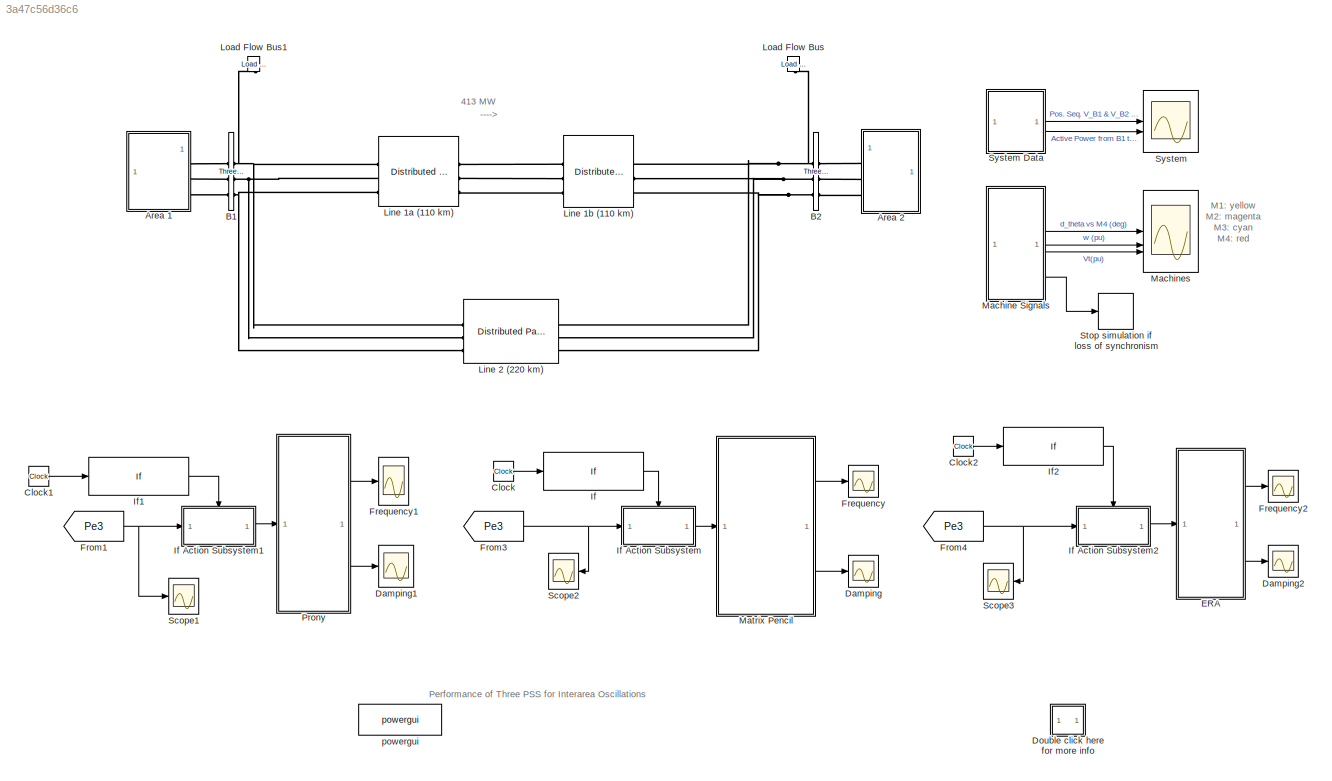
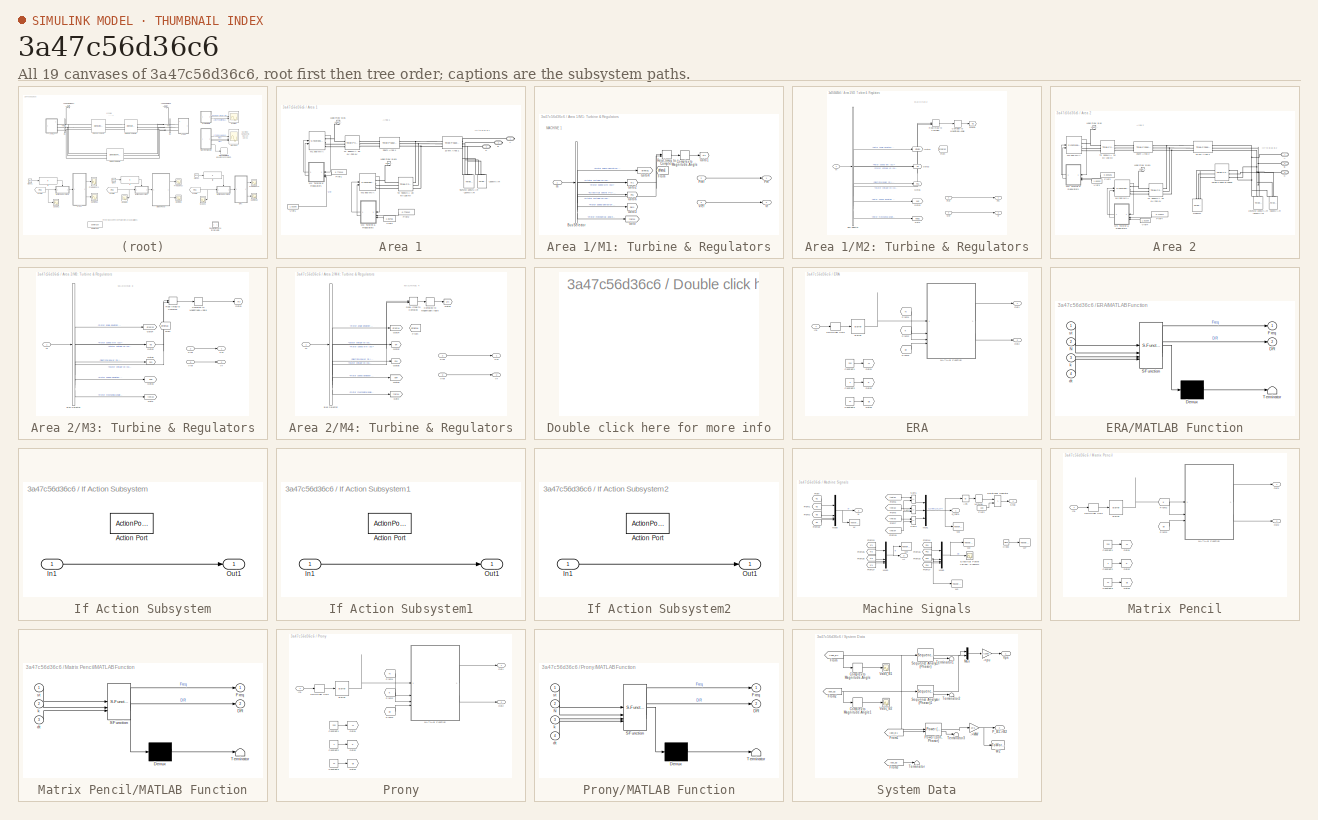
[diagram: thumbnail index - all 19 canvases of the model, root first then tree order]
MODEL slx_3a47c56d36c6
KIND model
CONFIG AbsTol = auto
CONFIG EnableMultiTasking = on
CONFIG FixedStep = auto
CONFIG InitFcn = N=200;\nTs=1/60;
CONFIG MaxStep = 1/60
CONFIG MinStep = auto
CONFIG RelTol = 1e-4
CONFIG SampleTimeConstraint = Unconstrained
CONFIG SolverName = ode23tb
CONFIG StartTime = 0.0
CONFIG StopTime = 20
BLOCK [SubSystem] Area 1
BLOCK [PMIOPort] Area 1/ A
  Side = Right
BLOCK [PMIOPort] Area 1/ B
  Port = 2
  Side = Right
BLOCK [PMIOPort] Area 1/ C
  Port = 3
  Side = Right
BLOCK [Reference] Area 1/-200MVAR  REF=spsThreePhaseParallelRLCLoadLib/Three-Phase
Parallel RLC Load
  AttributesFormatString = \n
  LibrarySourceBlock = sps_lib/Passives/Three-Phase\nParallel RLC Load
  NameLocation = right
  SourceBlock = spsThreePhaseParallelRLCLoadLib/Three-Phase\nParallel RLC Load
  SourceType = Three-Phase Parallel RLC Load
BLOCK [Reference] Area 1/10 km Area 1  REF=spsThreePhasePISectionLineLib/Three-Phase
PI Section Line
  AttributesFormatString = \n
  LibrarySourceBlock = sps_lib/Power Grid Elements/Three-Phase\nPI Section Line
  SourceBlock = spsThreePhasePISectionLineLib/Three-Phase\nPI Section Line
  SourceType = Three-Phase PI Section Line
BLOCK [Reference] Area 1/25km Area 1  REF=spsThreePhasePISectionLineLib/Three-Phase
PI Section Line
  AttributesFormatString = \n
  LibrarySourceBlock = sps_lib/Power Grid Elements/Three-Phase\nPI Section Line
  SourceBlock = spsThreePhasePISectionLineLib/Three-Phase\nPI Section Line
  SourceType = Three-Phase PI Section Line
BLOCK [Reference] Area 1/967MW 100MVAR -187MVAR  REF=spsThreePhaseParallelRLCLoadLib/Three-Phase
Parallel RLC Load
  AttributesFormatString = \n
  LibrarySourceBlock = sps_lib/Passives/Three-Phase\nParallel RLC Load
  NameLocation = left
  SourceBlock = spsThreePhaseParallelRLCLoadLib/Three-Phase\nParallel RLC Load
  SourceType = Three-Phase Parallel RLC Load
BLOCK [Reference] Area 1/Load Flow Bus  REF=spsLoadFlowBusLib/Load Flow Bus
  AttributesFormatString = %<ID>\n%<Vbase>V\n%<VLF>pu\n%<angleLF>deg.
  LibrarySourceBlock = sps_lib/Utilities/Load Flow Bus
  NameLocation = right
  SourceBlock = spsLoadFlowBusLib/Load Flow Bus
  SourceType = Load Flow Bus
BLOCK [Reference] Area 1/Load Flow Bus1  REF=spsLoadFlowBusLib/Load Flow Bus
  AttributesFormatString = %<ID>\n%<Vbase>V\n%<VLF>pu\n%<angleLF>deg.
  LibrarySourceBlock = sps_lib/Utilities/Load Flow Bus
  NameLocation = right
  SourceBlock = spsLoadFlowBusLib/Load Flow Bus
  SourceType = Load Flow Bus
BLOCK [Reference] Area 1/M1 900 MVA  REF=spsSynchronousMachinepuStandardLib/Synchronous Machine
pu Standard
  AttributesFormatString = \n\n
  LibrarySourceBlock = sps_lib/Electrical Machines/Synchronous Machine\npu Standard
  SourceBlock = spsSynchronousMachinepuStandardLib/Synchronous Machine\npu Standard
  SourceType = Synchronous Machine
BLOCK [SubSystem] Area 1/M1: Turbine & Regulators
BLOCK [BusSelector] Area 1/M1: Turbine & Regulators/Bus Selector
  OutputSignals = dq0 components.Stator voltage  vd (pu),dq0 components.Stator voltage  vq (pu),Mechanical.Rotor angle deviation  d_theta (rad),Mechanical.Rotor speed  wm  (pu),Mechanical.Electrical power  Pe (pu),Mechanical.Rotor speed deviation  dw (pu),Mechanical.Rotor mechanical angle  theta (deg)  <repeated x4 — deduplicated; at blocks: Bus Selector>
BLOCK [ComplexToMagnitudeAngle] Area 1/M1: Turbine & Regulators/Complex to Magnitude-Angle
  Output = Magnitude
BLOCK [From] Area 1/M1: Turbine & Regulators/From
  GotoTag = dtheta1
  TagVisibility = global
BLOCK [Goto] Area 1/M1: Turbine & Regulators/Goto
  GotoTag = theta1
  TagVisibility = global
BLOCK [Goto] Area 1/M1: Turbine & Regulators/Goto1
  GotoTag = Vt1
  TagVisibility = global
BLOCK [Goto] Area 1/M1: Turbine & Regulators/Goto2
  GotoTag = w1
  TagVisibility = global
BLOCK [Goto] Area 1/M1: Turbine & Regulators/Goto3
  GotoTag = dw1
  TagVisibility = global
BLOCK [Goto] Area 1/M1: Turbine & Regulators/Goto4
  GotoTag = dtheta1
  TagVisibility = global
BLOCK [Goto] Area 1/M1: Turbine & Regulators/Goto6
  GotoTag = Pe1
  TagVisibility = global
BLOCK [Outport] Area 1/M1: Turbine & Regulators/Pm
  InitialOutput = 0
BLOCK [Inport] Area 1/M1: Turbine & Regulators/Pref
  Port = 2
BLOCK [RealImagToComplex] Area 1/M1: Turbine & Regulators/Real-Imag to Complex
BLOCK [Outport] Area 1/M1: Turbine & Regulators/Vf
  InitialOutput = 0
  Port = 2
BLOCK [Inport] Area 1/M1: Turbine & Regulators/Vref
  Port = 3
BLOCK [Inport] Area 1/M1: Turbine & Regulators/m
BLOCK [Reference] Area 1/M2 900 MVA  REF=spsSynchronousMachinepuStandardLib/Synchronous Machine
pu Standard
  AttributesFormatString = \n\n
  LibrarySourceBlock = sps_lib/Electrical Machines/Synchronous Machine\npu Standard
  SourceBlock = spsSynchronousMachinepuStandardLib/Synchronous Machine\npu Standard
  SourceType = Synchronous Machine
BLOCK [SubSystem] Area 1/M2: Turbine & Regulators
BLOCK [BusSelector] Area 1/M2: Turbine & Regulators/Bus Selector
BLOCK [ComplexToMagnitudeAngle] Area 1/M2: Turbine & Regulators/Complex to Magnitude-Angle
  Output = Magnitude
BLOCK [From] Area 1/M2: Turbine & Regulators/From
  GotoTag = dtheta2
  TagVisibility = global
BLOCK [Goto] Area 1/M2: Turbine & Regulators/Goto
  GotoTag = theta2
  TagVisibility = global
BLOCK [Goto] Area 1/M2: Turbine & Regulators/Goto1
  GotoTag = Vt2
  TagVisibility = global
BLOCK [Goto] Area 1/M2: Turbine & Regulators/Goto2
  GotoTag = w2
  TagVisibility = global
BLOCK [Goto] Area 1/M2: Turbine & Regulators/Goto3
  GotoTag = dw2
  TagVisibility = global
BLOCK [Goto] Area 1/M2: Turbine & Regulators/Goto4
  GotoTag = dtheta2
  TagVisibility = global
BLOCK [Goto] Area 1/M2: Turbine & Regulators/Goto6
  GotoTag = Pe2
  TagVisibility = global
BLOCK [Outport] Area 1/M2: Turbine & Regulators/Pm
  InitialOutput = 0
BLOCK [Inport] Area 1/M2: Turbine & Regulators/Pref
  Port = 2
BLOCK [RealImagToComplex] Area 1/M2: Turbine & Regulators/Real-Imag to Complex
BLOCK [Outport] Area 1/M2: Turbine & Regulators/Vf
  InitialOutput = 0
  Port = 2
BLOCK [Inport] Area 1/M2: Turbine & Regulators/Vref
  Port = 3
BLOCK [Inport] Area 1/M2: Turbine & Regulators/m
BLOCK [Constant] Area 1/Pref1
  Value = 0.779316
BLOCK [Constant] Area 1/Pref2
  Value = 0.779242
BLOCK [Reference] Area 1/T1: 900MVA 20 kV-230 kV  REF=spsThreePhaseTransformerTwoWindingsLib/Three-Phase
Transformer
(Two Windings)
  AttributesFormatString = \n
  LibrarySourceBlock = sps_lib/Power Grid Elements/Three-Phase\nTransformer\n(Two Windings)
  SourceBlock = spsThreePhaseTransformerTwoWindingsLib/Three-Phase\nTransformer\n(Two Windings)
  SourceType = Three-Phase Transformer (Two Windings)
BLOCK [Reference] Area 1/T2: 900MVA 20 kV//230 kV  REF=spsThreePhaseTransformerTwoWindingsLib/Three-Phase
Transformer
(Two Windings)
  AttributesFormatString = \n
  LibrarySourceBlock = sps_lib/Power Grid Elements/Three-Phase\nTransformer\n(Two Windings)
  SourceBlock = spsThreePhaseTransformerTwoWindingsLib/Three-Phase\nTransformer\n(Two Windings)
  SourceType = Three-Phase Transformer (Two Windings)
BLOCK [Constant] Area 1/Vref1
  NameLocation = top
  Value = 1.83395
BLOCK [Constant] Area 1/Vref2
  Value = 1.86756
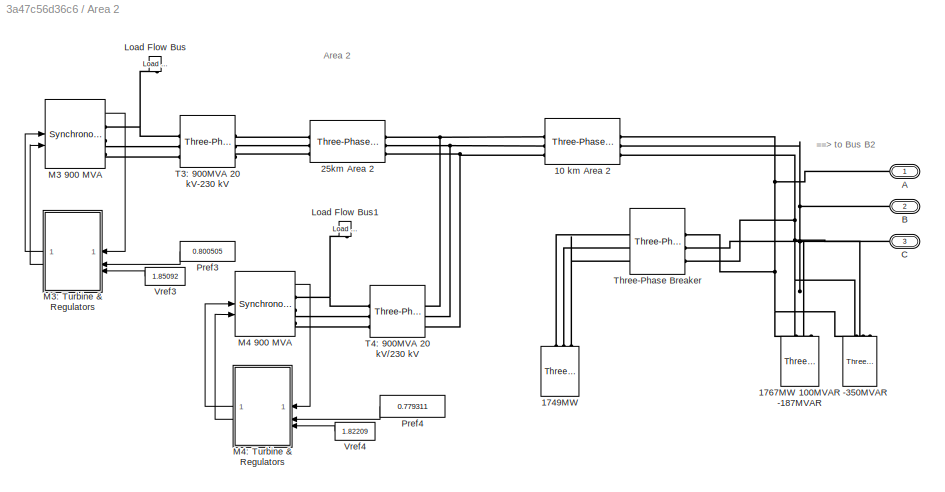
BLOCK [SubSystem] Area 2
BLOCK [Reference] Area 2/-350MVAR  REF=spsThreePhaseParallelRLCLoadLib/Three-Phase
Parallel RLC Load
  AttributesFormatString = \n
  LibrarySourceBlock = sps_lib/Passives/Three-Phase\nParallel RLC Load
  NameLocation = right
  SourceBlock = spsThreePhaseParallelRLCLoadLib/Three-Phase\nParallel RLC Load
  SourceType = Three-Phase Parallel RLC Load
BLOCK [Reference] Area 2/10 km Area 2  REF=spsThreePhasePISectionLineLib/Three-Phase
PI Section Line
  AttributesFormatString = \n
  LibrarySourceBlock = sps_lib/Power Grid Elements/Three-Phase\nPI Section Line
  SourceBlock = spsThreePhasePISectionLineLib/Three-Phase\nPI Section Line
  SourceType = Three-Phase PI Section Line
BLOCK [Reference] Area 2/1749MW   REF=spsThreePhaseParallelRLCLoadLib/Three-Phase
Parallel RLC Load
  AttributesFormatString = \n
  LibrarySourceBlock = sps_lib/Passives/Three-Phase\nParallel RLC Load
  NameLocation = left
  SourceBlock = spsThreePhaseParallelRLCLoadLib/Three-Phase\nParallel RLC Load
  SourceType = Three-Phase Parallel RLC Load
BLOCK [Reference] Area 2/1767MW 100MVAR -187MVAR  REF=spsThreePhaseParallelRLCLoadLib/Three-Phase
Parallel RLC Load
  AttributesFormatString = \n
  LibrarySourceBlock = sps_lib/Passives/Three-Phase\nParallel RLC Load
  NameLocation = left
  SourceBlock = spsThreePhaseParallelRLCLoadLib/Three-Phase\nParallel RLC Load
  SourceType = Three-Phase Parallel RLC Load
BLOCK [Reference] Area 2/25km Area 2  REF=spsThreePhasePISectionLineLib/Three-Phase
PI Section Line
  AttributesFormatString = \n
  LibrarySourceBlock = sps_lib/Power Grid Elements/Three-Phase\nPI Section Line
  SourceBlock = spsThreePhasePISectionLineLib/Three-Phase\nPI Section Line
  SourceType = Three-Phase PI Section Line
BLOCK [PMIOPort] Area 2/A
  Side = Left
BLOCK [PMIOPort] Area 2/B
  Port = 2
  Side = Left
BLOCK [PMIOPort] Area 2/C
  Port = 3
  Side = Left
BLOCK [Reference] Area 2/Load Flow Bus  REF=spsLoadFlowBusLib/Load Flow Bus
  AttributesFormatString = %<ID>\n%<Vbase>V\n%<VLF>pu\n%<angleLF>deg.
  LibrarySourceBlock = sps_lib/Utilities/Load Flow Bus
  NameLocation = right
  SourceBlock = spsLoadFlowBusLib/Load Flow Bus
  SourceType = Load Flow Bus
BLOCK [Reference] Area 2/Load Flow Bus1  REF=spsLoadFlowBusLib/Load Flow Bus
  AttributesFormatString = %<ID>\n%<Vbase>V\n%<VLF>pu\n%<angleLF>deg.
  LibrarySourceBlock = sps_lib/Utilities/Load Flow Bus
  NameLocation = right
  SourceBlock = spsLoadFlowBusLib/Load Flow Bus
  SourceType = Load Flow Bus
BLOCK [Reference] Area 2/M3 900 MVA  REF=spsSynchronousMachinepuStandardLib/Synchronous Machine
pu Standard
  AttributesFormatString = \n\n
  LibrarySourceBlock = sps_lib/Electrical Machines/Synchronous Machine\npu Standard
  SourceBlock = spsSynchronousMachinepuStandardLib/Synchronous Machine\npu Standard
  SourceType = Synchronous Machine
BLOCK [SubSystem] Area 2/M3: Turbine & Regulators
BLOCK [BusSelector] Area 2/M3: Turbine & Regulators/Bus Selector
BLOCK [ComplexToMagnitudeAngle] Area 2/M3: Turbine & Regulators/Complex to Magnitude-Angle
  Output = Magnitude
BLOCK [From] Area 2/M3: Turbine & Regulators/From
  GotoTag = dtheta3
  TagVisibility = global
BLOCK [Goto] Area 2/M3: Turbine & Regulators/Goto
  GotoTag = theta3
  TagVisibility = global
BLOCK [Goto] Area 2/M3: Turbine & Regulators/Goto1
  GotoTag = Vt3
  TagVisibility = global
BLOCK [Goto] Area 2/M3: Turbine & Regulators/Goto2
  GotoTag = w3
  TagVisibility = global
BLOCK [Goto] Area 2/M3: Turbine & Regulators/Goto3
  GotoTag = dw3
  TagVisibility = global
BLOCK [Goto] Area 2/M3: Turbine & Regulators/Goto4
  GotoTag = dtheta3
  TagVisibility = global
BLOCK [Goto] Area 2/M3: Turbine & Regulators/Goto6
  GotoTag = Pe3
  TagVisibility = global
BLOCK [Outport] Area 2/M3: Turbine & Regulators/Pm
  InitialOutput = 0
BLOCK [Inport] Area 2/M3: Turbine & Regulators/Pref
  Port = 2
BLOCK [RealImagToComplex] Area 2/M3: Turbine & Regulators/Real-Imag to Complex
BLOCK [Outport] Area 2/M3: Turbine & Regulators/Vf
  InitialOutput = 0
  Port = 2
BLOCK [Inport] Area 2/M3: Turbine & Regulators/Vref
  Port = 3
BLOCK [Inport] Area 2/M3: Turbine & Regulators/m
BLOCK [Reference] Area 2/M4 900 MVA  REF=spsSynchronousMachinepuStandardLib/Synchronous Machine
pu Standard
  AttributesFormatString = \n\n
  LibrarySourceBlock = sps_lib/Electrical Machines/Synchronous Machine\npu Standard
  SourceBlock = spsSynchronousMachinepuStandardLib/Synchronous Machine\npu Standard
  SourceType = Synchronous Machine
BLOCK [SubSystem] Area 2/M4: Turbine & Regulators
BLOCK [BusSelector] Area 2/M4: Turbine & Regulators/Bus Selector
BLOCK [ComplexToMagnitudeAngle] Area 2/M4: Turbine & Regulators/Complex to Magnitude-Angle
  Output = Magnitude
BLOCK [From] Area 2/M4: Turbine & Regulators/From
  GotoTag = dtheta4
  TagVisibility = global
BLOCK [Goto] Area 2/M4: Turbine & Regulators/Goto
  GotoTag = theta4
  TagVisibility = global
BLOCK [Goto] Area 2/M4: Turbine & Regulators/Goto1
  GotoTag = Vt4
  TagVisibility = global
BLOCK [Goto] Area 2/M4: Turbine & Regulators/Goto2
  GotoTag = w4
  TagVisibility = global
BLOCK [Goto] Area 2/M4: Turbine & Regulators/Goto3
  GotoTag = dw4
  TagVisibility = global
BLOCK [Goto] Area 2/M4: Turbine & Regulators/Goto4
  GotoTag = dtheta4
  TagVisibility = global
BLOCK [Goto] Area 2/M4: Turbine & Regulators/Goto6
  GotoTag = Pe4
  TagVisibility = global
BLOCK [Outport] Area 2/M4: Turbine & Regulators/Pm
  InitialOutput = 0
BLOCK [Inport] Area 2/M4: Turbine & Regulators/Pref
  Port = 2
BLOCK [RealImagToComplex] Area 2/M4: Turbine & Regulators/Real-Imag to Complex
BLOCK [Outport] Area 2/M4: Turbine & Regulators/Vf
  InitialOutput = 0
  Port = 2
BLOCK [Inport] Area 2/M4: Turbine & Regulators/Vref
  Port = 3
BLOCK [Inport] Area 2/M4: Turbine & Regulators/m
BLOCK [Constant] Area 2/Pref3
  Value = 0.800505
BLOCK [Constant] Area 2/Pref4
  Value = 0.779311
BLOCK [Reference] Area 2/T3: 900MVA 20 kV-230 kV  REF=spsThreePhaseTransformerTwoWindingsLib/Three-Phase
Transformer
(Two Windings)
  AttributesFormatString = \n
  LibrarySourceBlock = sps_lib/Power Grid Elements/Three-Phase\nTransformer\n(Two Windings)
  SourceBlock = spsThreePhaseTransformerTwoWindingsLib/Three-Phase\nTransformer\n(Two Windings)
  SourceType = Three-Phase Transformer (Two Windings)
BLOCK [Reference] Area 2/T4: 900MVA 20 kV//230 kV  REF=spsThreePhaseTransformerTwoWindingsLib/Three-Phase
Transformer
(Two Windings)
  AttributesFormatString = \n
  LibrarySourceBlock = sps_lib/Power Grid Elements/Three-Phase\nTransformer\n(Two Windings)
  SourceBlock = spsThreePhaseTransformerTwoWindingsLib/Three-Phase\nTransformer\n(Two Windings)
  SourceType = Three-Phase Transformer (Two Windings)
BLOCK [Reference] Area 2/Three-Phase Breaker  REF=spsThreePhaseBreakerLib/Three-Phase Breaker
  LibrarySourceBlock = sps_lib/Power Grid Elements/Three-Phase Breaker
  NameLocation = top
  SourceBlock = spsThreePhaseBreakerLib/Three-Phase Breaker
  SourceType = Three-Phase Breaker
BLOCK [Constant] Area 2/Vref3
  Value = 1.85092
BLOCK [Constant] Area 2/Vref4
  Value = 1.82209
BLOCK [Reference] B1  REF=spsThreePhaseVIMeasurementLib/Three-Phase
V-I Measurement
  LibrarySourceBlock = sps_lib/Sensors and Measurements/Three-Phase\nV-I Measurement
  SourceBlock = spsThreePhaseVIMeasurementLib/Three-Phase\nV-I Measurement
  SourceType = Three-Phase VI Measurement
BLOCK [Reference] B2  REF=spsThreePhaseVIMeasurementLib/Three-Phase
V-I Measurement
  LibrarySourceBlock = sps_lib/Sensors and Measurements/Three-Phase\nV-I Measurement
  SourceBlock = spsThreePhaseVIMeasurementLib/Three-Phase\nV-I Measurement
  SourceType = Three-Phase VI Measurement
BLOCK [Clock] Clock
  Decimation = 1
BLOCK [Clock] Clock1
  Decimation = 1
BLOCK [Clock] Clock2
  Decimation = 1
BLOCK [Scope] Damping
  Floating = off
  NumInputPorts = 1
  ScopeSpecificationString = C++SS(StrPVP('Location','[824, 152, 1355, 575]'),StrPVP('Open','off'),StrPVP('ZoomMode','yonly'),MxPVP('AxesTitles',54,'struct(''axes1'',''%<SignalLabel>'')'),MxPVP('ScopeGraphics',57,'struct(''FigureColor'',''[0.156862745098039 0.156862745098039 0.156862745098039]'',''AxesColor'',''[0 0 0]'',''AxesTickColor'',''[0.686274509803922 0.686274509803922 0.686274509803922]'',''LineColors'',''[1 1 0;1 0 ...<+409ch>
BLOCK [Scope] Damping1
  Floating = off
  NumInputPorts = 1
  ScopeSpecificationString = C++SS(StrPVP('Location','[58, 196, 589, 619]'),StrPVP('Open','off'),MxPVP('AxesTitles',54,'struct(''axes1'',''%<SignalLabel>'')'),MxPVP('ScopeGraphics',57,'struct(''FigureColor'',''[0.156862745098039 0.156862745098039 0.156862745098039]'',''AxesColor'',''[0 0 0]'',''AxesTickColor'',''[0.686274509803922 0.686274509803922 0.686274509803922]'',''LineColors'',''[1 1 0;1 0 1;0 1 1;1 0 0;0 1 0;0 0 1]'',...<+385ch>
BLOCK [Scope] Damping2
  Floating = off
  NumInputPorts = 1
  ScopeSpecificationString = C++SS(StrPVP('Location','[369, 156, 900, 579]'),StrPVP('Open','off'),StrPVP('ZoomMode','yonly'),MxPVP('AxesTitles',54,'struct(''axes1'',''%<SignalLabel>'')'),MxPVP('ScopeGraphics',57,'struct(''FigureColor'',''[0.156862745098039 0.156862745098039 0.156862745098039]'',''AxesColor'',''[0 0 0]'',''AxesTickColor'',''[0.686274509803922 0.686274509803922 0.686274509803922]'',''LineColors'',''[1 1 0;1 0 1...<+409ch>
BLOCK [SubSystem] Double click here for more info
  OpenFcn = showdemo(bdroot(gcb))
BLOCK [SubSystem] ERA
BLOCK [Buffer] ERA/Buffer
  N = N
  V = N-1
BLOCK [Constant] ERA/Constant1
  SampleTime = Ts
  Value = 200
BLOCK [Constant] ERA/Constant2
  SampleTime = Ts
  Value = 2
BLOCK [Constant] ERA/Constant3
  SampleTime = Ts
  Value = Ts
BLOCK [From] ERA/From1
  GotoTag = N
BLOCK [From] ERA/From2
  GotoTag = k
BLOCK [From] ERA/From3
  GotoTag = dt
BLOCK [Goto] ERA/Goto1
  GotoTag = N
BLOCK [Goto] ERA/Goto2
  GotoTag = k
BLOCK [Goto] ERA/Goto3
  GotoTag = dt
BLOCK [Inport] ERA/In1
BLOCK [SubSystem] ERA/MATLAB Function
  ErrorFcn = Stateflow.Translate.translate
  PermitHierarchicalResolution = ExplicitOnly
  SFBlockType = MATLAB Function
  TreatAsAtomicUnit = on
BLOCK [Demux] ERA/MATLAB Function/ Demux 
  Outputs = 1
BLOCK [S-Function] ERA/MATLAB Function/ SFunction 
  EnableBusSupport = off
  FunctionName = sf_sfun
  PortCounts = [4 3]
  SFcnIsStateOwnerBlock = off
  SFunctionDeploymentMode = off
  Tag = Stateflow S-Function 3
BLOCK [Terminator] ERA/MATLAB Function/ Terminator 
BLOCK [Outport] ERA/MATLAB Function/DR
  Port = 2
BLOCK [Outport] ERA/MATLAB Function/Freq
BLOCK [Inport] ERA/MATLAB Function/N
  Port = 2
BLOCK [Inport] ERA/MATLAB Function/dt
  Port = 4
BLOCK [Inport] ERA/MATLAB Function/k
  Port = 3
BLOCK [Inport] ERA/MATLAB Function/st
BLOCK [Outport] ERA/Out1
BLOCK [Outport] ERA/Out2
  Port = 2
BLOCK [ZeroOrderHold] ERA/Zero-Order Hold
  SampleTime = Ts
BLOCK [Scope] Frequency
  Floating = off
  NumInputPorts = 1
  ScopeSpecificationString = C++SS(StrPVP('Location','[230, 337, 790, 757]'),StrPVP('Open','off'),MxPVP('AxesTitles',54,'struct(''axes1'',''%<SignalLabel>'')'),MxPVP('ScopeGraphics',57,'struct(''FigureColor'',''[0.156862745098039 0.156862745098039 0.156862745098039]'',''AxesColor'',''[0 0 0]'',''AxesTickColor'',''[0.686274509803922 0.686274509803922 0.686274509803922]'',''LineColors'',''[1 1 0;1 0 1;0 1 1;1 0 0;0 1 0;0 0 1]''...<+373ch>
BLOCK [Scope] Frequency1
  Floating = off
  NumInputPorts = 1
  ScopeSpecificationString = C++SS(StrPVP('Location','[172, 77, 679, 420]'),StrPVP('Open','off'),MxPVP('AxesTitles',54,'struct(''axes1'',''%<SignalLabel>'')'),MxPVP('ScopeGraphics',57,'struct(''FigureColor'',''[0.156862745098039 0.156862745098039 0.156862745098039]'',''AxesColor'',''[0 0 0]'',''AxesTickColor'',''[0.686274509803922 0.686274509803922 0.686274509803922]'',''LineColors'',''[1 1 0;1 0 1;0 1 1;1 0 0;0 1 0;0 0 1]'',...<+384ch>
BLOCK [Scope] Frequency2
  Floating = off
  NumInputPorts = 1
  ScopeSpecificationString = C++SS(StrPVP('Location','[802, 65, 1362, 485]'),StrPVP('Open','off'),MxPVP('AxesTitles',54,'struct(''axes1'',''%<SignalLabel>'')'),MxPVP('ScopeGraphics',57,'struct(''FigureColor'',''[0.156862745098039 0.156862745098039 0.156862745098039]'',''AxesColor'',''[0 0 0]'',''AxesTickColor'',''[0.686274509803922 0.686274509803922 0.686274509803922]'',''LineColors'',''[1 1 0;1 0 1;0 1 1;1 0 0;0 1 0;0 0 1]''...<+385ch>
BLOCK [From] From1
  CloseFcn = tagdialog Close
  GotoTag = Pe3
  TagVisibility = global
BLOCK [From] From3
  CloseFcn = tagdialog Close
  GotoTag = Pe3
  TagVisibility = global
BLOCK [From] From4
  CloseFcn = tagdialog Close
  GotoTag = Pe3
  TagVisibility = global
BLOCK [If] If
  IfExpression = u1 > 2
  ShowElse = off
BLOCK [SubSystem] If Action Subsystem
  TreatAsAtomicUnit = on
BLOCK [ActionPort] If Action Subsystem/Action Port
BLOCK [Inport] If Action Subsystem/In1
BLOCK [Outport] If Action Subsystem/Out1
BLOCK [SubSystem] If Action Subsystem1
  TreatAsAtomicUnit = on
BLOCK [ActionPort] If Action Subsystem1/Action Port
BLOCK [Inport] If Action Subsystem1/In1
BLOCK [Outport] If Action Subsystem1/Out1
BLOCK [SubSystem] If Action Subsystem2
  TreatAsAtomicUnit = on
BLOCK [ActionPort] If Action Subsystem2/Action Port
BLOCK [Inport] If Action Subsystem2/In1
BLOCK [Outport] If Action Subsystem2/Out1
BLOCK [If] If1
  IfExpression = u1 > 2
  ShowElse = off
BLOCK [If] If2
  IfExpression = u1 > 2
  ShowElse = off
BLOCK [Reference] Line 1a (110 km)  REF=spsDistributedParametersLineLib/Distributed Parameters Line
  AttributesFormatString = \n
  LibrarySourceBlock = sps_lib/Power Grid Elements/Distributed Parameters Line
  SourceBlock = spsDistributedParametersLineLib/Distributed Parameters Line
  SourceType = Distributed Parameters Line
BLOCK [Reference] Line 1b (110 km)  REF=spsDistributedParametersLineLib/Distributed Parameters Line
  AttributesFormatString = \n
  LibrarySourceBlock = sps_lib/Power Grid Elements/Distributed Parameters Line
  SourceBlock = spsDistributedParametersLineLib/Distributed Parameters Line
  SourceType = Distributed Parameters Line
BLOCK [Reference] Line 2 (220 km)  REF=spsDistributedParametersLineLib/Distributed Parameters Line
  AttributesFormatString = \n
  LibrarySourceBlock = sps_lib/Power Grid Elements/Distributed Parameters Line
  SourceBlock = spsDistributedParametersLineLib/Distributed Parameters Line
  SourceType = Distributed Parameters Line
BLOCK [Reference] Load Flow Bus  REF=spsLoadFlowBusLib/Load Flow Bus
  AttributesFormatString = %<ID>\n%<Vbase>V\n%<VLF>pu\n%<angleLF>deg.
  LibrarySourceBlock = sps_lib/Utilities/Load Flow Bus
  NameLocation = right
  SourceBlock = spsLoadFlowBusLib/Load Flow Bus
  SourceType = Load Flow Bus
BLOCK [Reference] Load Flow Bus1  REF=spsLoadFlowBusLib/Load Flow Bus
  AttributesFormatString = %<ID>\n%<Vbase>V\n%<VLF>pu\n%<angleLF>deg.
  LibrarySourceBlock = sps_lib/Utilities/Load Flow Bus
  NameLocation = right
  SourceBlock = spsLoadFlowBusLib/Load Flow Bus
  SourceType = Load Flow Bus
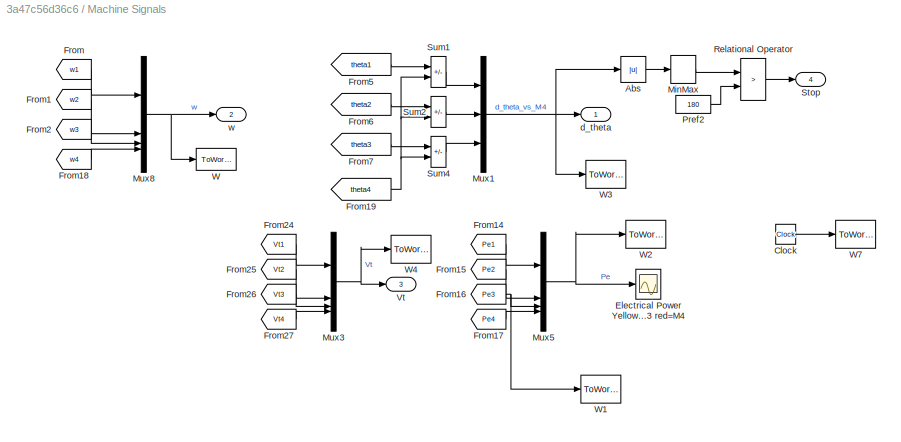
BLOCK [SubSystem] Machine Signals
BLOCK [Abs] Machine Signals/Abs
BLOCK [Clock] Machine Signals/Clock
BLOCK [Scope] Machine Signals/Electrical Power Yellow=M1 mag=M2 cyan=M3 red=M4 
  Floating = off
  NumInputPorts = 1
  ScopeSpecificationString = C++SS(StrPVP('Location','[644, 190, 1350, 563]'),StrPVP('Open','off'),MxPVP('AxesTitles',54,'struct(''axes1'',''%<SignalLabel>'')'),MxPVP('ScopeGraphics',57,'struct(''FigureColor'',''[0.501960784313725 0.501960784313725 0.501960784313725]'',''AxesColor'',''[0 0 0]'',''AxesTickColor'',''[1 1 1]'',''LineColors'',''[1 1 0;1 0 1;0 1 1;1 0 0;0 1 0;0 0 1]'',''LineStyles'',''-|-|-|-|-|-'',''LineWidths'',...<+288ch>
BLOCK [From] Machine Signals/From
  CloseFcn = tagdialog Close
  GotoTag = w1
  TagVisibility = global
BLOCK [From] Machine Signals/From1
  CloseFcn = tagdialog Close
  GotoTag = w2
  TagVisibility = global
BLOCK [From] Machine Signals/From14
  CloseFcn = tagdialog Close
  GotoTag = Pe1
  TagVisibility = global
BLOCK [From] Machine Signals/From15
  CloseFcn = tagdialog Close
  GotoTag = Pe2
  TagVisibility = global
BLOCK [From] Machine Signals/From16
  CloseFcn = tagdialog Close
  GotoTag = Pe3
  TagVisibility = global
BLOCK [From] Machine Signals/From17
  CloseFcn = tagdialog Close
  GotoTag = Pe4
  TagVisibility = global
BLOCK [From] Machine Signals/From18
  CloseFcn = tagdialog Close
  GotoTag = w4
  TagVisibility = global
BLOCK [From] Machine Signals/From19
  CloseFcn = tagdialog Close
  GotoTag = theta4
  TagVisibility = global
BLOCK [From] Machine Signals/From2
  CloseFcn = tagdialog Close
  GotoTag = w3
  TagVisibility = global
BLOCK [From] Machine Signals/From24
  CloseFcn = tagdialog Close
  GotoTag = Vt1
  TagVisibility = global
BLOCK [From] Machine Signals/From25
  CloseFcn = tagdialog Close
  GotoTag = Vt2
  TagVisibility = global
BLOCK [From] Machine Signals/From26
  CloseFcn = tagdialog Close
  GotoTag = Vt3
  TagVisibility = global
BLOCK [From] Machine Signals/From27
  CloseFcn = tagdialog Close
  GotoTag = Vt4
  TagVisibility = global
BLOCK [From] Machine Signals/From5
  CloseFcn = tagdialog Close
  GotoTag = theta1
  TagVisibility = global
BLOCK [From] Machine Signals/From6
  CloseFcn = tagdialog Close
  GotoTag = theta2
  TagVisibility = global
BLOCK [From] Machine Signals/From7
  CloseFcn = tagdialog Close
  GotoTag = theta3
  TagVisibility = global
BLOCK [MinMax] Machine Signals/MinMax
  Function = max
  InputSameDT = on
  SaturateOnIntegerOverflow = on
BLOCK [Mux] Machine Signals/Mux1
  DisplayOption = bar
  Inputs = 3
BLOCK [Mux] Machine Signals/Mux3
  DisplayOption = bar
BLOCK [Mux] Machine Signals/Mux5
  DisplayOption = bar
BLOCK [Mux] Machine Signals/Mux8
  DisplayOption = bar
BLOCK [Constant] Machine Signals/Pref2
  NameLocation = top
  Value = 180
BLOCK [RelationalOperator] Machine Signals/Relational Operator
  Operator = >
BLOCK [Outport] Machine Signals/Stop
  Port = 4
BLOCK [Sum] Machine Signals/Sum1
  IconShape = rectangular
  InputSameDT = on
  Inputs = +-
  OutDataTypeStr = Inherit: Same as first input
  SaturateOnIntegerOverflow = on
BLOCK [Sum] Machine Signals/Sum2
  IconShape = rectangular
  InputSameDT = on
  Inputs = +-
  OutDataTypeStr = Inherit: Same as first input
  SaturateOnIntegerOverflow = on
BLOCK [Sum] Machine Signals/Sum4
  IconShape = rectangular
  InputSameDT = on
  Inputs = +-
  OutDataTypeStr = Inherit: Same as first input
  SaturateOnIntegerOverflow = on
BLOCK [Outport] Machine Signals/Vt
  Port = 3
BLOCK [ToWorkspace] Machine Signals/W
  MaxDataPoints = inf
  SampleTime = 1/60
  VariableName = w
BLOCK [ToWorkspace] Machine Signals/W1
  MaxDataPoints = inf
  SampleTime = 1/60
  VariableName = Pe3_1
BLOCK [ToWorkspace] Machine Signals/W2
  MaxDataPoints = inf
  SampleTime = 1/60
  VariableName = Pe
BLOCK [ToWorkspace] Machine Signals/W3
  MaxDataPoints = inf
  SampleTime = 1/60
  VariableName = DTH
BLOCK [ToWorkspace] Machine Signals/W4
  MaxDataPoints = inf
  SampleTime = 1/60
  VariableName = Vt
BLOCK [ToWorkspace] Machine Signals/W7
  MaxDataPoints = inf
  SampleTime = 1/60
  VariableName = t
BLOCK [Outport] Machine Signals/d_theta
BLOCK [Outport] Machine Signals/w
  Port = 2
BLOCK [Scope] Machines
  Floating = off
  NameLocation = top
  NumInputPorts = 3
  ScopeSpecificationString = C++SS(StrPVP('Location','[645, 86, 1269, 686]'),StrPVP('Open','off'),StrPVP('ZoomMode','xonly'),MxPVP('AxesTitles',54,'struct(''axes1'',''%<SignalLabel>'',''axes2'',''%<SignalLabel>'',''axes3'',''%<SignalLabel>'')'),MxPVP('ScopeGraphics',57,'struct(''FigureColor'',''[0.156862745098039 0.156862745098039 0.156862745098039]'',''AxesColor'',''[0 0 0]'',''AxesTickColor'',''[0.686274509803922 0.68627450...<+462ch>
BLOCK [SubSystem] Matrix Pencil
BLOCK [Buffer] Matrix Pencil/Buffer
  N = N
  V = N-1
BLOCK [Constant] Matrix Pencil/Constant1
  SampleTime = Ts
  Value = 200
BLOCK [Constant] Matrix Pencil/Constant2
  SampleTime = Ts
  Value = 2
BLOCK [Constant] Matrix Pencil/Constant3
  SampleTime = Ts
  Value = Ts
BLOCK [From] Matrix Pencil/From2
  GotoTag = k
BLOCK [From] Matrix Pencil/From3
  GotoTag = dt
BLOCK [Goto] Matrix Pencil/Goto1
  GotoTag = N
BLOCK [Goto] Matrix Pencil/Goto2
  GotoTag = k
BLOCK [Goto] Matrix Pencil/Goto3
  GotoTag = dt
BLOCK [Inport] Matrix Pencil/In1
BLOCK [SubSystem] Matrix Pencil/MATLAB Function
  ErrorFcn = Stateflow.Translate.translate
  PermitHierarchicalResolution = ExplicitOnly
  SFBlockType = MATLAB Function
  TreatAsAtomicUnit = on
BLOCK [Demux] Matrix Pencil/MATLAB Function/ Demux 
  Outputs = 1
BLOCK [S-Function] Matrix Pencil/MATLAB Function/ SFunction 
  EnableBusSupport = off
  FunctionName = sf_sfun
  PortCounts = [3 3]
  SFcnIsStateOwnerBlock = off
  SFunctionDeploymentMode = off
  Tag = Stateflow S-Function 2
BLOCK [Terminator] Matrix Pencil/MATLAB Function/ Terminator 
BLOCK [Outport] Matrix Pencil/MATLAB Function/DR
  Port = 2
BLOCK [Outport] Matrix Pencil/MATLAB Function/Freq
BLOCK [Inport] Matrix Pencil/MATLAB Function/dt
  Port = 3
BLOCK [Inport] Matrix Pencil/MATLAB Function/k
  Port = 2
BLOCK [Inport] Matrix Pencil/MATLAB Function/st
BLOCK [Outport] Matrix Pencil/Out1
BLOCK [Outport] Matrix Pencil/Out2
  Port = 2
BLOCK [ZeroOrderHold] Matrix Pencil/Zero-Order Hold
  SampleTime = Ts
BLOCK [SubSystem] Prony
BLOCK [Buffer] Prony/Buffer
  N = N
  V = N-1
BLOCK [Constant] Prony/Constant1
  SampleTime = Ts
  Value = 200
BLOCK [Constant] Prony/Constant2
  SampleTime = Ts
  Value = 2
BLOCK [Constant] Prony/Constant3
  SampleTime = Ts
  Value = Ts
BLOCK [From] Prony/From1
  GotoTag = N
BLOCK [From] Prony/From2
  GotoTag = k
BLOCK [From] Prony/From3
  GotoTag = dt
BLOCK [Goto] Prony/Goto1
  GotoTag = N
BLOCK [Goto] Prony/Goto2
  GotoTag = k
BLOCK [Goto] Prony/Goto3
  GotoTag = dt
BLOCK [Inport] Prony/In1
BLOCK [SubSystem] Prony/MATLAB Function
  ErrorFcn = Stateflow.Translate.translate
  PermitHierarchicalResolution = ExplicitOnly
  SFBlockType = MATLAB Function
  TreatAsAtomicUnit = on
BLOCK [Demux] Prony/MATLAB Function/ Demux 
  Outputs = 1
BLOCK [S-Function] Prony/MATLAB Function/ SFunction 
  EnableBusSupport = off
  FunctionName = sf_sfun
  PortCounts = [4 3]
  SFcnIsStateOwnerBlock = off
  SFunctionDeploymentMode = off
  Tag = Stateflow S-Function 1
BLOCK [Terminator] Prony/MATLAB Function/ Terminator 
BLOCK [Outport] Prony/MATLAB Function/DR
  Port = 2
BLOCK [Outport] Prony/MATLAB Function/Freq
BLOCK [Inport] Prony/MATLAB Function/N
  Port = 2
BLOCK [Inport] Prony/MATLAB Function/dt
  Port = 4
BLOCK [Inport] Prony/MATLAB Function/k
  Port = 3
BLOCK [Inport] Prony/MATLAB Function/st
BLOCK [Outport] Prony/Out1
BLOCK [Outport] Prony/Out2
  Port = 2
BLOCK [ZeroOrderHold] Prony/Zero-Order Hold
  SampleTime = Ts
BLOCK [Scope] Scope1
  Floating = off
  NumInputPorts = 1
  ScopeSpecificationString = C++SS(StrPVP('Location','[605, 138, 1357, 653]'),StrPVP('Open','off'),MxPVP('AxesTitles',54,'struct(''axes1'',''%<SignalLabel>'')'),MxPVP('ScopeGraphics',57,'struct(''FigureColor'',''[0.501960784313725 0.501960784313725 0.501960784313725]'',''AxesColor'',''[0 0 0]'',''AxesTickColor'',''[1 1 1]'',''LineColors'',''[1 1 0;1 0 1;0 1 1;1 0 0;0 1 0;0 0 1]'',''LineStyles'',''-|-|-|-|-|-'',''LineWidths'',...<+310ch>
BLOCK [Scope] Scope2
  Floating = off
  NumInputPorts = 1
  ScopeSpecificationString = C++SS(StrPVP('Location','[605, 138, 1357, 653]'),StrPVP('Open','off'),StrPVP('ZoomMode','xonly'),MxPVP('AxesTitles',54,'struct(''axes1'',''%<SignalLabel>'')'),MxPVP('ScopeGraphics',57,'struct(''FigureColor'',''[0.501960784313725 0.501960784313725 0.501960784313725]'',''AxesColor'',''[0 0 0]'',''AxesTickColor'',''[1 1 1]'',''LineColors'',''[1 1 0;1 0 1;0 1 1;1 0 0;0 1 0;0 0 1]'',''LineStyles'',''-|...<+330ch>
BLOCK [Scope] Scope3
  Floating = off
  NumInputPorts = 1
  ScopeSpecificationString = C++SS(StrPVP('Location','[605, 138, 1357, 653]'),StrPVP('Open','off'),StrPVP('ZoomMode','xonly'),MxPVP('AxesTitles',54,'struct(''axes1'',''%<SignalLabel>'')'),MxPVP('ScopeGraphics',57,'struct(''FigureColor'',''[0.501960784313725 0.501960784313725 0.501960784313725]'',''AxesColor'',''[0 0 0]'',''AxesTickColor'',''[1 1 1]'',''LineColors'',''[1 1 0;1 0 1;0 1 1;1 0 0;0 1 0;0 0 1]'',''LineStyles'',''-|...<+340ch>
BLOCK [Stop] Stop simulation if loss of synchronism
BLOCK [Scope] System
  Floating = off
  NameLocation = top
  NumInputPorts = 2
  ScopeSpecificationString = C++SS(StrPVP('Location','[520, 175, 1076, 575]'),StrPVP('Open','off'),MxPVP('AxesTitles',54,'struct(''axes1'',''%<SignalLabel>'',''axes2'',''%<SignalLabel>'')'),MxPVP('ScopeGraphics',57,'struct(''FigureColor'',''[0.156862745098039 0.156862745098039 0.156862745098039]'',''AxesColor'',''[0 0 0]'',''AxesTickColor'',''[0.686274509803922 0.686274509803922 0.686274509803922]'',''LineColors'',''[1 1 0;1 ...<+414ch>
BLOCK [SubSystem] System Data
  NameLocation = top
BLOCK [Gain] System Data/->MW
  Gain = 1e-6
  OutDataTypeStr = Inherit: Same as input
  ParamDataTypeStr = Inherit: Same as input
  SaturateOnIntegerOverflow = on
BLOCK [Gain] System Data/->pu
  Gain = 1/(230e3/sqrt(3)*sqrt(2))
  OutDataTypeStr = Inherit: Same as input
  ParamDataTypeStr = Inherit: Same as input
  SaturateOnIntegerOverflow = on
BLOCK [ComplexToMagnitudeAngle] System Data/Complex to Magnitude-Angle
  Output = Magnitude
BLOCK [ComplexToMagnitudeAngle] System Data/Complex to Magnitude-Angle1
  Output = Magnitude
BLOCK [From] System Data/From
  CloseFcn = tagdialog Close
  GotoTag = Vabc_B1
  TagVisibility = global
BLOCK [From] System Data/From1
  CloseFcn = tagdialog Close
  GotoTag = Iabc_B1
  TagVisibility = global
BLOCK [From] System Data/From2
  CloseFcn = tagdialog Close
  GotoTag = Vabc_B2
  TagVisibility = global
BLOCK [From] System Data/From3
  CloseFcn = tagdialog Close
  GotoTag = Iabc_B2
  TagVisibility = global
BLOCK [Mux] System Data/Mux
  DisplayOption = bar
  Inputs = 2
BLOCK [Outport] System Data/P_B1->B2
  Port = 2
BLOCK [Reference] System Data/Power (3ph, Phasor)  REF=spsPower3phPhasorLib/Power
(3ph, Phasor)
  LibrarySourceBlock = sps_lib/Sensors and Measurements/Power\n(3ph, Phasor)
  SourceBlock = spsPower3phPhasorLib/Power\n(3ph, Phasor)
  SourceType = Power (3ph, Phasor)
BLOCK [Reference] System Data/Sequence Analyzer (Phasor)  REF=spsSequenceAnalyzerPhasorLib/Sequence Analyzer
(Phasor)
  LibrarySourceBlock = sps_lib/Sensors and Measurements/Sequence Analyzer\n(Phasor)
  SourceBlock = spsSequenceAnalyzerPhasorLib/Sequence Analyzer\n(Phasor)
  SourceType = Sequence Analyzer (Phasor)
BLOCK [Reference] System Data/Sequence Analyzer (Phasor)1  REF=spsSequenceAnalyzerPhasorLib/Sequence Analyzer
(Phasor)
  LibrarySourceBlock = sps_lib/Sensors and Measurements/Sequence Analyzer\n(Phasor)
  SourceBlock = spsSequenceAnalyzerPhasorLib/Sequence Analyzer\n(Phasor)
  SourceType = Sequence Analyzer (Phasor)
BLOCK [Terminator] System Data/Terminator
BLOCK [Terminator] System Data/Terminator1
BLOCK [Terminator] System Data/Terminator2
BLOCK [Terminator] System Data/Terminator3
BLOCK [Scope] System Data/Vabc_B1
  Floating = off
  NumInputPorts = 1
  ScopeSpecificationString = C++SS(StrPVP('Location','[481, 428, 884, 681]'),StrPVP('Open','off'),MxPVP('AxesTitles',54,'struct(''axes1'',''%<SignalLabel>'')'),MxPVP('ScopeGraphics',57,'struct(''FigureColor'',''[0.156862745098039 0.156862745098039 0.156862745098039]'',''AxesColor'',''[0 0 0]'',''AxesTickColor'',''[0.686274509803922 0.686274509803922 0.686274509803922]'',''LineColors'',''[1 1 0;1 0 1;0 1 1;1 0 0;0 1 0;0 0 1]''...<+359ch>
BLOCK [Scope] System Data/Vabc_B2
  Floating = off
  NumInputPorts = 1
  ScopeSpecificationString = C++SS(StrPVP('Location','[328, 281, 884, 681]'),StrPVP('Open','off'),MxPVP('AxesTitles',54,'struct(''axes1'',''%<SignalLabel>'')'),MxPVP('ScopeGraphics',57,'struct(''FigureColor'',''[0.156862745098039 0.156862745098039 0.156862745098039]'',''AxesColor'',''[0 0 0]'',''AxesTickColor'',''[0.686274509803922 0.686274509803922 0.686274509803922]'',''LineColors'',''[1 1 0;1 0 1;0 1 1;1 0 0;0 1 0;0 0 1]''...<+359ch>
BLOCK [Outport] System Data/Vps
BLOCK [ToWorkspace] System Data/W2
  MaxDataPoints = inf
  SampleTime = 1/60
  VariableName = P
BLOCK [Reference] powergui  REF=spspowerguiLib/powergui
  LibrarySourceBlock = sps_lib/powergui
  Priority = 2
  SourceBlock = spspowerguiLib/powergui
  SourceType = PSB option menu block
ANNOTATION (root): ---->
ANNOTATION (root): 413 MW
ANNOTATION (root): M1: yellow M2: magenta M3: cyan M4: red
ANNOTATION (root): Performance of Three PSS for Interarea Oscillations
ANNOTATION Area 1: ==> to Bus B1
ANNOTATION Area 1: Area 1
ANNOTATION Area 1/M1: Turbine & Regulators: MACHINE 1
ANNOTATION Area 1/M2: Turbine & Regulators: MACHINE 2
ANNOTATION Area 2: ==> to Bus B2
ANNOTATION Area 2: Area 2
ANNOTATION Area 2/M3: Turbine & Regulators: MACHINE 3
ANNOTATION Area 2/M4: Turbine & Regulators: MACHINE 4
LINE Area 1/M1 900 MVA:1 -> Area 1/M1: Turbine & Regulators:1
LINE Area 1/M1: Turbine & Regulators/Bus Selector:1 -> Area 1/M1: Turbine & Regulators/Real-Imag to Complex:1
LINE Area 1/M1: Turbine & Regulators/Bus Selector:2 -> Area 1/M1: Turbine & Regulators/Real-Imag to Complex:2
LINE Area 1/M1: Turbine & Regulators/Bus Selector:3 -> Area 1/M1: Turbine & Regulators/Goto4:1
LINE Area 1/M1: Turbine & Regulators/Bus Selector:4 -> Area 1/M1: Turbine & Regulators/Goto2:1
LINE Area 1/M1: Turbine & Regulators/Bus Selector:5 -> Area 1/M1: Turbine & Regulators/Goto6:1
LINE Area 1/M1: Turbine & Regulators/Bus Selector:6 -> Area 1/M1: Turbine & Regulators/Goto3:1
LINE Area 1/M1: Turbine & Regulators/Bus Selector:7 -> Area 1/M1: Turbine & Regulators/Goto:1
LINE Area 1/M1: Turbine & Regulators/Complex to Magnitude-Angle:1 -> Area 1/M1: Turbine & Regulators/Goto1:1
LINE Area 1/M1: Turbine & Regulators/Pref:1 -> Area 1/M1: Turbine & Regulators/Pm:1
LINE Area 1/M1: Turbine & Regulators/Real-Imag to Complex:1 -> Area 1/M1: Turbine & Regulators/Complex to Magnitude-Angle:1
LINE Area 1/M1: Turbine & Regulators/Vref:1 -> Area 1/M1: Turbine & Regulators/Vf:1
LINE Area 1/M1: Turbine & Regulators/m:1 -> Area 1/M1: Turbine & Regulators/Bus Selector:1
LINE Area 1/M1: Turbine & Regulators:1 -> Area 1/M1 900 MVA:1
LINE Area 1/M1: Turbine & Regulators:2 -> Area 1/M1 900 MVA:2
LINE Area 1/M2 900 MVA:1 -> Area 1/M2: Turbine & Regulators:1
LINE Area 1/M2: Turbine & Regulators/Bus Selector:1 -> Area 1/M2: Turbine & Regulators/Real-Imag to Complex:1
LINE Area 1/M2: Turbine & Regulators/Bus Selector:2 -> Area 1/M2: Turbine & Regulators/Real-Imag to Complex:2
LINE Area 1/M2: Turbine & Regulators/Bus Selector:3 -> Area 1/M2: Turbine & Regulators/Goto4:1
LINE Area 1/M2: Turbine & Regulators/Bus Selector:4 -> Area 1/M2: Turbine & Regulators/Goto2:1
LINE Area 1/M2: Turbine & Regulators/Bus Selector:5 -> Area 1/M2: Turbine & Regulators/Goto6:1
LINE Area 1/M2: Turbine & Regulators/Bus Selector:6 -> Area 1/M2: Turbine & Regulators/Goto3:1
LINE Area 1/M2: Turbine & Regulators/Bus Selector:7 -> Area 1/M2: Turbine & Regulators/Goto:1
LINE Area 1/M2: Turbine & Regulators/Complex to Magnitude-Angle:1 -> Area 1/M2: Turbine & Regulators/Goto1:1
LINE Area 1/M2: Turbine & Regulators/Pref:1 -> Area 1/M2: Turbine & Regulators/Pm:1
LINE Area 1/M2: Turbine & Regulators/Real-Imag to Complex:1 -> Area 1/M2: Turbine & Regulators/Complex to Magnitude-Angle:1
LINE Area 1/M2: Turbine & Regulators/Vref:1 -> Area 1/M2: Turbine & Regulators/Vf:1
LINE Area 1/M2: Turbine & Regulators/m:1 -> Area 1/M2: Turbine & Regulators/Bus Selector:1
LINE Area 1/M2: Turbine & Regulators:1 -> Area 1/M2 900 MVA:1
LINE Area 1/M2: Turbine & Regulators:2 -> Area 1/M2 900 MVA:2
LINE Area 1/Pref1:1 -> Area 1/M1: Turbine & Regulators:2
LINE Area 1/Pref2:1 -> Area 1/M2: Turbine & Regulators:2
LINE Area 1/Vref1:1 -> Area 1/M1: Turbine & Regulators:3
LINE Area 1/Vref2:1 -> Area 1/M2: Turbine & Regulators:3
LINE Area 2/M3 900 MVA:1 -> Area 2/M3: Turbine & Regulators:1
LINE Area 2/M3: Turbine & Regulators/Bus Selector:1 -> Area 2/M3: Turbine & Regulators/Real-Imag to Complex:1
LINE Area 2/M3: Turbine & Regulators/Bus Selector:2 -> Area 2/M3: Turbine & Regulators/Real-Imag to Complex:2
LINE Area 2/M3: Turbine & Regulators/Bus Selector:3 -> Area 2/M3: Turbine & Regulators/Goto4:1
LINE Area 2/M3: Turbine & Regulators/Bus Selector:4 -> Area 2/M3: Turbine & Regulators/Goto2:1
LINE Area 2/M3: Turbine & Regulators/Bus Selector:5 -> Area 2/M3: Turbine & Regulators/Goto6:1
LINE Area 2/M3: Turbine & Regulators/Bus Selector:6 -> Area 2/M3: Turbine & Regulators/Goto3:1
LINE Area 2/M3: Turbine & Regulators/Bus Selector:7 -> Area 2/M3: Turbine & Regulators/Goto:1
LINE Area 2/M3: Turbine & Regulators/Complex to Magnitude-Angle:1 -> Area 2/M3: Turbine & Regulators/Goto1:1
LINE Area 2/M3: Turbine & Regulators/Pref:1 -> Area 2/M3: Turbine & Regulators/Pm:1
LINE Area 2/M3: Turbine & Regulators/Real-Imag to Complex:1 -> Area 2/M3: Turbine & Regulators/Complex to Magnitude-Angle:1
LINE Area 2/M3: Turbine & Regulators/Vref:1 -> Area 2/M3: Turbine & Regulators/Vf:1
LINE Area 2/M3: Turbine & Regulators/m:1 -> Area 2/M3: Turbine & Regulators/Bus Selector:1
LINE Area 2/M3: Turbine & Regulators:1 -> Area 2/M3 900 MVA:1
LINE Area 2/M3: Turbine & Regulators:2 -> Area 2/M3 900 MVA:2
LINE Area 2/M4 900 MVA:1 -> Area 2/M4: Turbine & Regulators:1
LINE Area 2/M4: Turbine & Regulators/Bus Selector:1 -> Area 2/M4: Turbine & Regulators/Real-Imag to Complex:1
LINE Area 2/M4: Turbine & Regulators/Bus Selector:2 -> Area 2/M4: Turbine & Regulators/Real-Imag to Complex:2
LINE Area 2/M4: Turbine & Regulators/Bus Selector:3 -> Area 2/M4: Turbine & Regulators/Goto4:1
LINE Area 2/M4: Turbine & Regulators/Bus Selector:4 -> Area 2/M4: Turbine & Regulators/Goto2:1
LINE Area 2/M4: Turbine & Regulators/Bus Selector:5 -> Area 2/M4: Turbine & Regulators/Goto6:1
LINE Area 2/M4: Turbine & Regulators/Bus Selector:6 -> Area 2/M4: Turbine & Regulators/Goto3:1
LINE Area 2/M4: Turbine & Regulators/Bus Selector:7 -> Area 2/M4: Turbine & Regulators/Goto:1
LINE Area 2/M4: Turbine & Regulators/Complex to Magnitude-Angle:1 -> Area 2/M4: Turbine & Regulators/Goto1:1
LINE Area 2/M4: Turbine & Regulators/Pref:1 -> Area 2/M4: Turbine & Regulators/Pm:1
LINE Area 2/M4: Turbine & Regulators/Real-Imag to Complex:1 -> Area 2/M4: Turbine & Regulators/Complex to Magnitude-Angle:1
LINE Area 2/M4: Turbine & Regulators/Vref:1 -> Area 2/M4: Turbine & Regulators/Vf:1
LINE Area 2/M4: Turbine & Regulators/m:1 -> Area 2/M4: Turbine & Regulators/Bus Selector:1
LINE Area 2/M4: Turbine & Regulators:1 -> Area 2/M4 900 MVA:1
LINE Area 2/M4: Turbine & Regulators:2 -> Area 2/M4 900 MVA:2
LINE Area 2/Pref3:1 -> Area 2/M3: Turbine & Regulators:2
LINE Area 2/Pref4:1 -> Area 2/M4: Turbine & Regulators:2
LINE Area 2/Vref3:1 -> Area 2/M3: Turbine & Regulators:3
LINE Area 2/Vref4:1 -> Area 2/M4: Turbine & Regulators:3
LINE Clock1:1 -> If1:1
LINE Clock2:1 -> If2:1
LINE Clock:1 -> If:1
LINE ERA/Buffer:1 -> ERA/MATLAB Function:1
LINE ERA/Constant1:1 -> ERA/Goto1:1
LINE ERA/Constant2:1 -> ERA/Goto2:1
LINE ERA/Constant3:1 -> ERA/Goto3:1
LINE ERA/From1:1 -> ERA/MATLAB Function:2
LINE ERA/From2:1 -> ERA/MATLAB Function:3
LINE ERA/From3:1 -> ERA/MATLAB Function:4
LINE ERA/In1:1 -> ERA/Zero-Order Hold:1
LINE ERA/MATLAB Function:1 -> ERA/Out1:1
LINE ERA/MATLAB Function:2 -> ERA/Out2:1
LINE ERA/Zero-Order Hold:1 -> ERA/Buffer:1
LINE ERA:1 -> Frequency2:1
LINE ERA:2 -> Damping2:1
NET From1:1 -> If Action Subsystem1:1, Scope1:1
NET From3:1 -> If Action Subsystem:1, Scope2:1
NET From4:1 -> If Action Subsystem2:1, Scope3:1
LINE If Action Subsystem/In1:1 -> If Action Subsystem/Out1:1
LINE If Action Subsystem1/In1:1 -> If Action Subsystem1/Out1:1
LINE If Action Subsystem1:1 -> Prony:1
LINE If Action Subsystem2/In1:1 -> If Action Subsystem2/Out1:1
LINE If Action Subsystem2:1 -> ERA:1
LINE If Action Subsystem:1 -> Matrix Pencil:1
LINE If1:1 -> If Action Subsystem1:ifaction
LINE If2:1 -> If Action Subsystem2:ifaction
LINE If:1 -> If Action Subsystem:ifaction
LINE Machine Signals/Abs:1 -> Machine Signals/MinMax:1
LINE Machine Signals/Clock:1 -> Machine Signals/W7:1
LINE Machine Signals/From14:1 -> Machine Signals/Mux5:1
LINE Machine Signals/From15:1 -> Machine Signals/Mux5:2
NET Machine Signals/From16:1 -> Machine Signals/Mux5:3, Machine Signals/W1:1
LINE Machine Signals/From17:1 -> Machine Signals/Mux5:4
LINE Machine Signals/From18:1 -> Machine Signals/Mux8:4
NET Machine Signals/From19:1 -> Machine Signals/Sum1:2, Machine Signals/Sum2:2, Machine Signals/Sum4:2
LINE Machine Signals/From1:1 -> Machine Signals/Mux8:2
LINE Machine Signals/From24:1 -> Machine Signals/Mux3:1
LINE Machine Signals/From25:1 -> Machine Signals/Mux3:2
LINE Machine Signals/From26:1 -> Machine Signals/Mux3:3
LINE Machine Signals/From27:1 -> Machine Signals/Mux3:4
LINE Machine Signals/From2:1 -> Machine Signals/Mux8:3
LINE Machine Signals/From5:1 -> Machine Signals/Sum1:1
LINE Machine Signals/From6:1 -> Machine Signals/Sum2:1
LINE Machine Signals/From7:1 -> Machine Signals/Sum4:1
LINE Machine Signals/From:1 -> Machine Signals/Mux8:1
LINE Machine Signals/MinMax:1 -> Machine Signals/Relational Operator:1
NET Machine Signals/Mux1:1 -> Machine Signals/Abs:1, Machine Signals/W3:1, Machine Signals/d_theta:1
NET Machine Signals/Mux3:1 -> Machine Signals/Vt:1, Machine Signals/W4:1
NET Machine Signals/Mux5:1 -> Machine Signals/Electrical Power Yellow=M1 mag=M2 cyan=M3 red=M4 :1, Machine Signals/W2:1
NET Machine Signals/Mux8:1 -> Machine Signals/W:1, Machine Signals/w:1
LINE Machine Signals/Pref2:1 -> Machine Signals/Relational Operator:2
LINE Machine Signals/Relational Operator:1 -> Machine Signals/Stop:1
LINE Machine Signals/Sum1:1 -> Machine Signals/Mux1:1
LINE Machine Signals/Sum2:1 -> Machine Signals/Mux1:2
LINE Machine Signals/Sum4:1 -> Machine Signals/Mux1:3
LINE Machine Signals:1 -> Machines:1
LINE Machine Signals:2 -> Machines:2
LINE Machine Signals:3 -> Machines:3
LINE Machine Signals:4 -> Stop simulation if loss of synchronism:1
LINE Matrix Pencil/Buffer:1 -> Matrix Pencil/MATLAB Function:1
LINE Matrix Pencil/Constant1:1 -> Matrix Pencil/Goto1:1
LINE Matrix Pencil/Constant2:1 -> Matrix Pencil/Goto2:1
LINE Matrix Pencil/Constant3:1 -> Matrix Pencil/Goto3:1
LINE Matrix Pencil/From2:1 -> Matrix Pencil/MATLAB Function:2
LINE Matrix Pencil/From3:1 -> Matrix Pencil/MATLAB Function:3
LINE Matrix Pencil/In1:1 -> Matrix Pencil/Zero-Order Hold:1
LINE Matrix Pencil/MATLAB Function:1 -> Matrix Pencil/Out1:1
LINE Matrix Pencil/MATLAB Function:2 -> Matrix Pencil/Out2:1
LINE Matrix Pencil/Zero-Order Hold:1 -> Matrix Pencil/Buffer:1
LINE Matrix Pencil:1 -> Frequency:1
LINE Matrix Pencil:2 -> Damping:1
LINE Prony/Buffer:1 -> Prony/MATLAB Function:1
LINE Prony/Constant1:1 -> Prony/Goto1:1
LINE Prony/Constant2:1 -> Prony/Goto2:1
LINE Prony/Constant3:1 -> Prony/Goto3:1
LINE Prony/From1:1 -> Prony/MATLAB Function:2
LINE Prony/From2:1 -> Prony/MATLAB Function:3
LINE Prony/From3:1 -> Prony/MATLAB Function:4
LINE Prony/In1:1 -> Prony/Zero-Order Hold:1
LINE Prony/MATLAB Function:1 -> Prony/Out1:1
LINE Prony/MATLAB Function:2 -> Prony/Out2:1
LINE Prony/Zero-Order Hold:1 -> Prony/Buffer:1
LINE Prony:1 -> Frequency1:1
LINE Prony:2 -> Damping1:1
NET System Data/->MW:1 -> System Data/P_B1->B2:1, System Data/W2:1
LINE System Data/->pu:1 -> System Data/Vps:1
LINE System Data/Complex to Magnitude-Angle1:1 -> System Data/Vabc_B2:1
LINE System Data/Complex to Magnitude-Angle:1 -> System Data/Vabc_B1:1
LINE System Data/From1:1 -> System Data/Power (3ph, Phasor):2
NET System Data/From2:1 -> System Data/Complex to Magnitude-Angle1:1, System Data/Sequence Analyzer (Phasor)1:1
LINE System Data/From3:1 -> System Data/Terminator:1
NET System Data/From:1 -> System Data/Complex to Magnitude-Angle:1, System Data/Power (3ph, Phasor):1, System Data/Sequence Analyzer (Phasor):1
LINE System Data/Mux:1 -> System Data/->pu:1
LINE System Data/Power (3ph, Phasor):1 -> System Data/->MW:1
LINE System Data/Power (3ph, Phasor):2 -> System Data/Terminator3:1
LINE System Data/Sequence Analyzer (Phasor)1:1 -> System Data/Mux:2
LINE System Data/Sequence Analyzer (Phasor)1:2 -> System Data/Terminator2:1
LINE System Data/Sequence Analyzer (Phasor):1 -> System Data/Mux:1
LINE System Data/Sequence Analyzer (Phasor):2 -> System Data/Terminator1:1
LINE System Data:1 -> System:1
LINE System Data:2 -> System:2
PNET net1: Area 1/ A:RConn1 -- Area 1/-200MVAR:LConn1 -- Area 1/10 km Area 1:RConn1 -- Area 1/967MW 100MVAR -187MVAR:LConn1
PNET net2: Area 1/ B:RConn1 -- Area 1/-200MVAR:LConn2 -- Area 1/10 km Area 1:RConn2 -- Area 1/967MW 100MVAR -187MVAR:LConn2
PNET net3: Area 1/ C:RConn1 -- Area 1/-200MVAR:LConn3 -- Area 1/10 km Area 1:RConn3 -- Area 1/967MW 100MVAR -187MVAR:LConn3
PNET net4: Area 1/10 km Area 1:LConn1 -- Area 1/25km Area 1:RConn1 -- Area 1/T2: 900MVA 20 kV//230 kV:RConn1
PNET net5: Area 1/10 km Area 1:LConn2 -- Area 1/25km Area 1:RConn2 -- Area 1/T2: 900MVA 20 kV//230 kV:RConn2
PNET net6: Area 1/10 km Area 1:LConn3 -- Area 1/25km Area 1:RConn3 -- Area 1/T2: 900MVA 20 kV//230 kV:RConn3
PLINE Area 1/25km Area 1:LConn1 -- Area 1/T1: 900MVA 20 kV-230 kV:RConn1
PLINE Area 1/25km Area 1:LConn2 -- Area 1/T1: 900MVA 20 kV-230 kV:RConn2
PLINE Area 1/25km Area 1:LConn3 -- Area 1/T1: 900MVA 20 kV-230 kV:RConn3
PNET net7: Area 1/Load Flow Bus1:LConn1 -- Area 1/M2 900 MVA:RConn1 -- Area 1/T2: 900MVA 20 kV//230 kV:LConn1
PNET net8: Area 1/Load Flow Bus:LConn1 -- Area 1/M1 900 MVA:RConn1 -- Area 1/T1: 900MVA 20 kV-230 kV:LConn1
PLINE Area 1/M1 900 MVA:RConn2 -- Area 1/T1: 900MVA 20 kV-230 kV:LConn2
PLINE Area 1/M1 900 MVA:RConn3 -- Area 1/T1: 900MVA 20 kV-230 kV:LConn3
PLINE Area 1/M2 900 MVA:RConn2 -- Area 1/T2: 900MVA 20 kV//230 kV:LConn2
PLINE Area 1/M2 900 MVA:RConn3 -- Area 1/T2: 900MVA 20 kV//230 kV:LConn3
PLINE Area 1:RConn1 -- B1:LConn1
PLINE Area 1:RConn2 -- B1:LConn2
PLINE Area 1:RConn3 -- B1:LConn3
PNET net9: Area 2/-350MVAR:LConn1 -- Area 2/10 km Area 2:RConn1 -- Area 2/1767MW 100MVAR -187MVAR:LConn1 -- Area 2/A:RConn1 -- Area 2/Three-Phase Breaker:LConn1
PNET net10: Area 2/-350MVAR:LConn2 -- Area 2/10 km Area 2:RConn2 -- Area 2/1767MW 100MVAR -187MVAR:LConn2 -- Area 2/B:RConn1 -- Area 2/Three-Phase Breaker:LConn2
PNET net11: Area 2/-350MVAR:LConn3 -- Area 2/10 km Area 2:RConn3 -- Area 2/1767MW 100MVAR -187MVAR:LConn3 -- Area 2/C:RConn1 -- Area 2/Three-Phase Breaker:LConn3
PNET net12: Area 2/10 km Area 2:LConn1 -- Area 2/25km Area 2:RConn1 -- Area 2/T4: 900MVA 20 kV//230 kV:RConn1
PNET net13: Area 2/10 km Area 2:LConn2 -- Area 2/25km Area 2:RConn2 -- Area 2/T4: 900MVA 20 kV//230 kV:RConn2
PNET net14: Area 2/10 km Area 2:LConn3 -- Area 2/25km Area 2:RConn3 -- Area 2/T4: 900MVA 20 kV//230 kV:RConn3
PLINE Area 2/1749MW :LConn1 -- Area 2/Three-Phase Breaker:RConn1
PLINE Area 2/1749MW :LConn2 -- Area 2/Three-Phase Breaker:RConn2
PLINE Area 2/1749MW :LConn3 -- Area 2/Three-Phase Breaker:RConn3
PLINE Area 2/25km Area 2:LConn1 -- Area 2/T3: 900MVA 20 kV-230 kV:RConn1
PLINE Area 2/25km Area 2:LConn2 -- Area 2/T3: 900MVA 20 kV-230 kV:RConn2
PLINE Area 2/25km Area 2:LConn3 -- Area 2/T3: 900MVA 20 kV-230 kV:RConn3
PNET net15: Area 2/Load Flow Bus1:LConn1 -- Area 2/M4 900 MVA:RConn1 -- Area 2/T4: 900MVA 20 kV//230 kV:LConn1
PNET net16: Area 2/Load Flow Bus:LConn1 -- Area 2/M3 900 MVA:RConn1 -- Area 2/T3: 900MVA 20 kV-230 kV:LConn1
PLINE Area 2/M3 900 MVA:RConn2 -- Area 2/T3: 900MVA 20 kV-230 kV:LConn2
PLINE Area 2/M3 900 MVA:RConn3 -- Area 2/T3: 900MVA 20 kV-230 kV:LConn3
PLINE Area 2/M4 900 MVA:RConn2 -- Area 2/T4: 900MVA 20 kV//230 kV:LConn2
PLINE Area 2/M4 900 MVA:RConn3 -- Area 2/T4: 900MVA 20 kV//230 kV:LConn3
PLINE Area 2:LConn1 -- B2:RConn1
PLINE Area 2:LConn2 -- B2:RConn2
PLINE Area 2:LConn3 -- B2:RConn3
PNET net17: B1:RConn1 -- Line 1a (110 km):LConn1 -- Line 2 (220 km):LConn1 -- Load Flow Bus1:LConn1
PNET net18: B1:RConn2 -- Line 1a (110 km):LConn2 -- Line 2 (220 km):LConn2
PNET net19: B1:RConn3 -- Line 1a (110 km):LConn3 -- Line 2 (220 km):LConn3
PNET net20: B2:LConn1 -- Line 1b (110 km):RConn1 -- Line 2 (220 km):RConn1 -- Load Flow Bus:LConn1
PNET net21: B2:LConn2 -- Line 1b (110 km):RConn2 -- Line 2 (220 km):RConn2
PNET net22: B2:LConn3 -- Line 1b (110 km):RConn3 -- Line 2 (220 km):RConn3
PLINE Line 1a (110 km):RConn1 -- Line 1b (110 km):LConn1
PLINE Line 1a (110 km):RConn2 -- Line 1b (110 km):LConn2
PLINE Line 1a (110 km):RConn3 -- Line 1b (110 km):LConn3
note: NET lines group one-source signal fan-out (src -> all destinations, sorted); 1:1 wires keep LINE; PNET lines group multi-terminal physical nets as a canonical sorted terminal list (undirected conserving connections); 2-terminal nets keep the pairwise PLINE form
CHART Prony/MATLAB Function states=1 transitions=1
  STATE_LABEL 'eML_blk_kernel()'
  STATE_LABEL "SCRIPT:\nfunction [Freq, DR] = prony(st, N, k, dt)\nst = st - mean(st);\nb = st(k+1:N,1);\nb1 = st(k:N-1);\nR1 = st(k:-1:1);\nT = toeplitz(b1,R1);\na = pinv(T)*b;\np = [1 -1*a'];\nz = roots(p);\nlambda = log(z)/dt;\nsigma = -real(lambda);\nomega = imag(lambda);\nfre1 = omega/(2*pi);\ndamp = sigma;\naux = [fre1 damp];\naux = sortrows(aux);\nfre1 = aux(:,1);\ndamp = aux(:,2);\nFreq = fre1((k/2)+1:k);\ndr1 = damp((k/2)+...<+58ch>"
CHART Matrix Pencil/MATLAB Function states=1 transitions=1
  STATE_LABEL 'eML_blk_kernel()'
  STATE_LABEL "SCRIPT:\nfunction [Freq, DR] = matrix_pencil(st, k, dt)\nst = st - mean(st);\nL = 100;\nN = 200;\nY = zeros(N-L, N-L+1);\nfor i = 1:(N-L)\n    Y(i,:) = st(i:(i+L));\nend\n[U,S,V] = svd(Y);\nD = diag(S);              \nVnew = V(:,1:k);\na = size(Vnew,1);\nVs1 = Vnew(1:(a-1),:);\nVs2 = Vnew(2:end,:);\nY1 = Vs1'*Vs1;   \nY2 = Vs2'*Vs1;\nY1 = Y1';\nY1Y2 = inv(Y1)*Y2;\nY1Y2(isnan(Y1Y2)) = 0;\nE = eig(Y1Y2);\nlambda = log(E...<+258ch>"
CHART ERA/MATLAB Function states=1 transitions=1
  STATE_LABEL 'eML_blk_kernel()'
  STATE_LABEL "SCRIPT:\nfunction [Freq, DR] = ERA(st, N , k, dt)\nst = st - mean(st);\nr = round(N/2) - 1;\nH0 = hankel(st(1:r), st(r:end-2));\nH1 = hankel(st(2:r+1), st(r+1:end-1));\n[U,S,V] = svd(H0);\nSn = S(1:k,1:k);\nUn = U(:,1:k);\nVt = V';\nVn = Vt(1:k,:);\nD = sqrt(Sn);\nA = D\\Un'*H1*Vn'/D;\nA(isnan(A)) = 0;\nE = eig(A);\nlambda = log(E)/dt;\nsigma = -real(lambda);\nomega = imag(lambda);\nfre1 = omega/(2*pi);\ndamp = sigma...<+175ch>"
CHART  states=0 transitions=0
CHART  states=0 transitions=0
CHART  states=0 transitions=0
